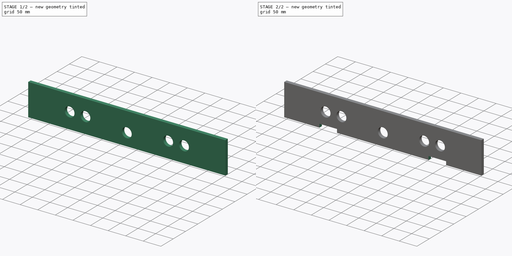
[diagram: build sequence overview — one tinted view per stage of 2, left to right]
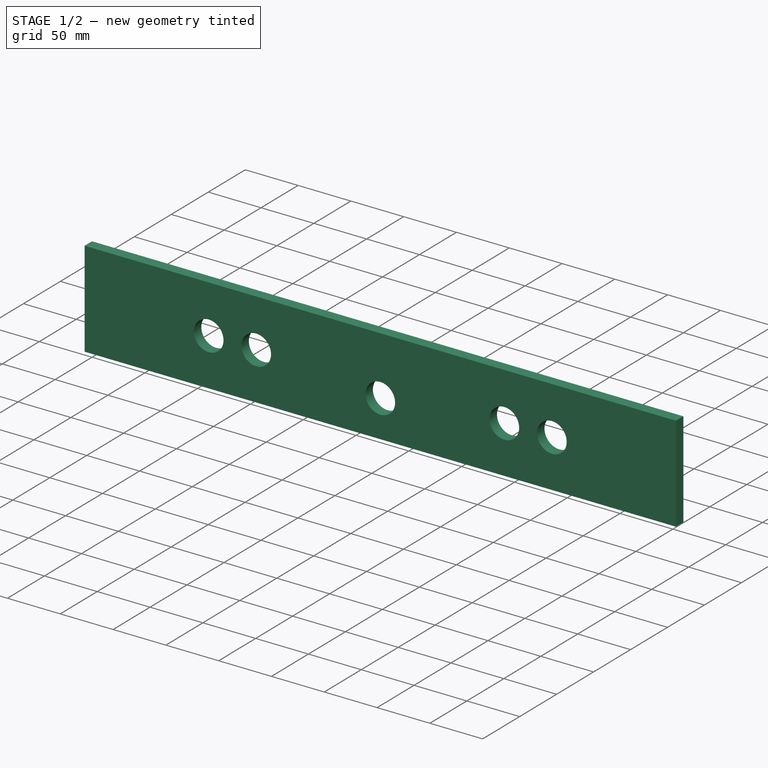
[diagram: stage 1 of 2 — iso view after this stage's code; geometry added in this stage tinted green]
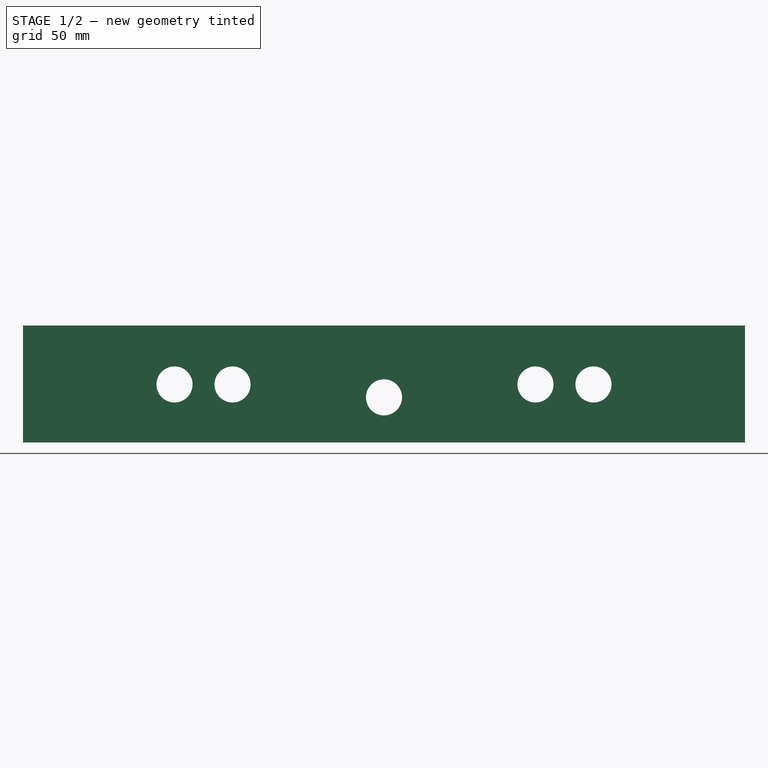
[diagram: stage 1 of 2 — front view after this stage's code; geometry added in this stage tinted green]
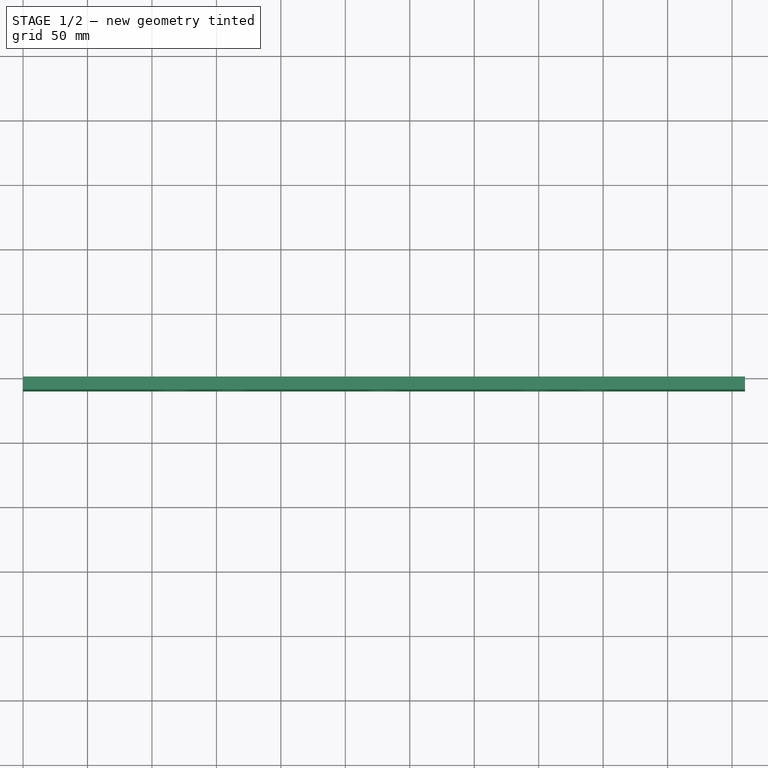
[diagram: stage 1 of 2 — top view after this stage's code; geometry added in this stage tinted green]
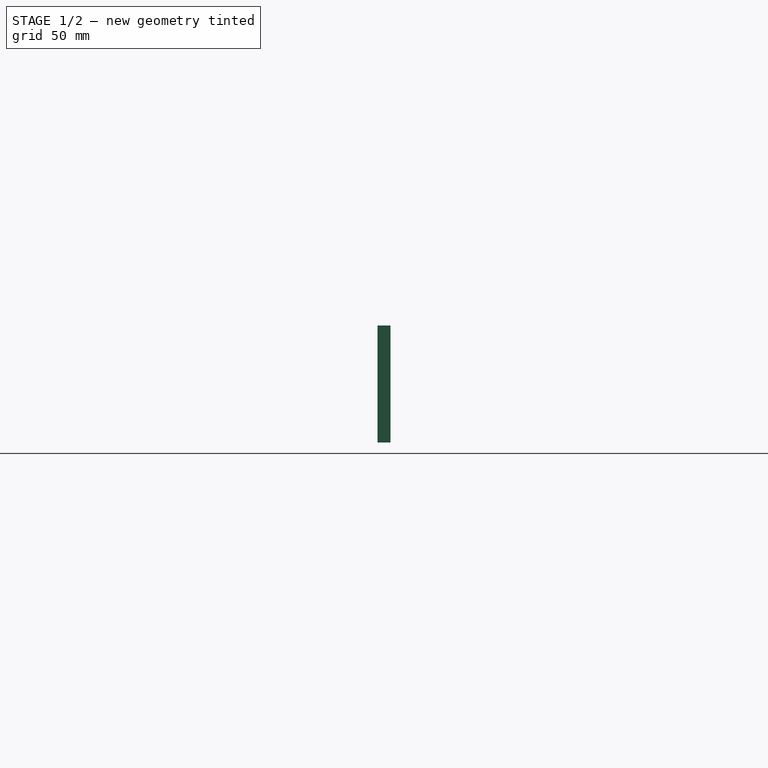
[diagram: stage 1 of 2 — right view after this stage's code; geometry added in this stage tinted green]
FCSTD DOCUMENT  (FreeCAD 0.16R)
Label: pannea_controle_avant
License: All rights reserved
LicenseURL: http://en.wikipedia.org/wiki/All_rights_reserved
objects: Sketcher::SketchObject×3, PartDesign::Pocket×2, PartDesign::Pad×1
note: 9 computed .brp shape members not serialized (recipe doc carries the construction recipe); baked Part::Feature solids carry a one-line shape summary decoded from their .brp

FEATURE [Sketcher::SketchObject] Sketch
  Placement = pos=(0,0,0) rot=(1,0,0;1.5708rad)
  sketch-geometry (4):
    g0: LineSegment StartX=0 StartY=0 StartZ=0 EndX=560 EndY=0 EndZ=0
    g1: LineSegment StartX=560 StartY=90.7 StartZ=0 EndX=0 EndY=90.7 EndZ=0
    g2: LineSegment StartX=560 StartY=90.7 StartZ=0 EndX=560 EndY=0 EndZ=0
    g3: LineSegment StartX=0 StartY=90.7 StartZ=0 EndX=0 EndY=0 EndZ=0
  constraints (11):
    c: Horizontal(g0)
    c: Horizontal(g1)
    c: Coincident(g0,g-1)
    c: Distance(g0) = 560
    c: DistanceY(g-1,g1) = 90.7
    c: Coincident(g2,g1)
    c: Coincident(g2,g0)
    c: Vertical(g2)
    c: Coincident(g3,g1)
    c: Coincident(g3,g-1)
    c: Vertical(g3)
FEATURE [PartDesign::Pad] Pad
  Length = 10
  Length2 = 100
  Placement = pos=(0,0,0) rot=(1,0,0;1.5708rad)
  Sketch = -> Sketch
  Type = 0
FEATURE [Sketcher::SketchObject] Sketch001
  Placement = pos=(0,-10,0) rot=(1,0,0;1.5708rad)
  Support = -> Pad [Face14]
  sketch-geometry (10):
    g0: Circle CenterX=117.5 CenterY=45 CenterZ=0 NormalX=0 NormalY=0 NormalZ=1 Radius=14
    g1: Circle CenterX=162.5 CenterY=45 CenterZ=0 NormalX=0 NormalY=0 NormalZ=1 Radius=14
    g2: Circle CenterX=397.5 CenterY=45 CenterZ=0 NormalX=0 NormalY=0 NormalZ=1 Radius=14
    g3: Circle CenterX=442.5 CenterY=45 CenterZ=0 NormalX=0 NormalY=0 NormalZ=1 Radius=14
    g4: LineSegment [constr] StartX=117.5 StartY=45 StartZ=0 EndX=162.5 EndY=45 EndZ=0
    g5: LineSegment [constr] StartX=397.5 StartY=45 StartZ=0 EndX=442.5 EndY=45 EndZ=0
    g6: Circle CenterX=280 CenterY=35 CenterZ=0 NormalX=0 NormalY=0 NormalZ=1 Radius=14
    g7: LineSegment [constr] StartX=162.5 StartY=45 StartZ=0 EndX=397.5 EndY=45 EndZ=0
    g8: GeomPoint [constr] X=280 Y=45 Z=0
    g9: LineSegment [constr] StartX=280 StartY=45 StartZ=0 EndX=280 EndY=35 EndZ=0
  constraints (24):
    c: Equal(g0,g1)
    c: Equal(g1,g2)
    c: Equal(g2,g3)
    c: DistanceX(g0,g1) = 45
    c: DistanceX(g2,g3) = 45
    c: Coincident(g4,g0)
    c: Coincident(g4,g1)
    c: Horizontal(g4)
    c: Coincident(g5,g2)
    c: Coincident(g5,g3)
    c: Horizontal(g5)
    c: Radius(g1) = 14
    c: Equal(g6,g2)
    c: DistanceX(g-1,g0) = 117.5
    c: DistanceX(g-1,g2) = 397.5
    c: Coincident(g7,g1)
    c: Coincident(g7,g2)
    c: Symmetric(g7,g7,g8)
    c: Coincident(g9,g8)
    c: Coincident(g9,g6)
    c: Vertical(g9)
    c: DistanceY(g9,g9) = 10
    c: DistanceY(g-1,g1) = 45
    c: Horizontal(g7)
FEATURE [PartDesign::Pocket] Pocket
  Length = 5
  Placement = pos=(0,0,0) rot=(1,0,0;1.5708rad)
  Sketch = -> Sketch001
  Type = 1
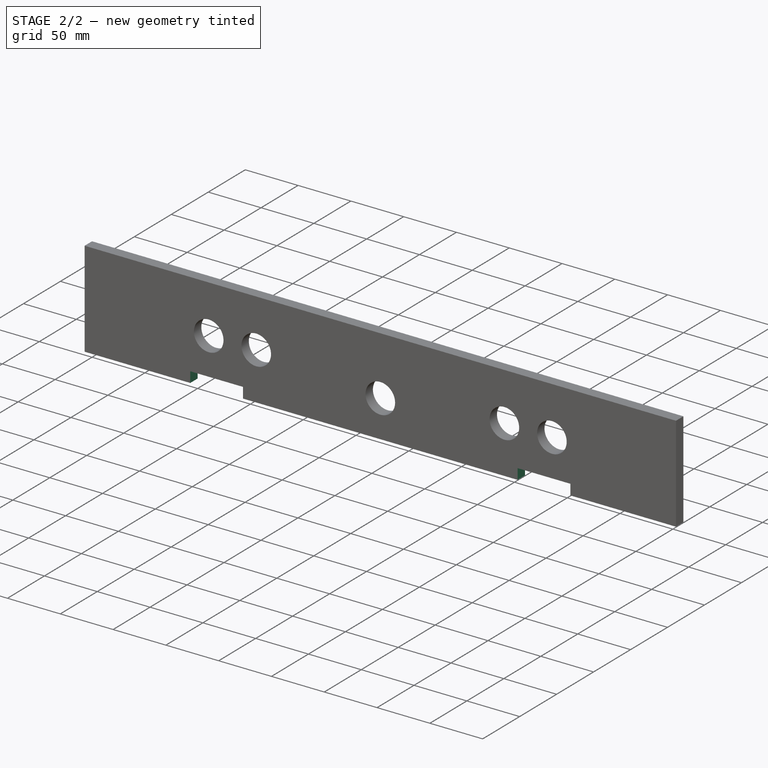
[diagram: stage 2 of 2 — iso view after this stage's code; geometry added in this stage tinted green]
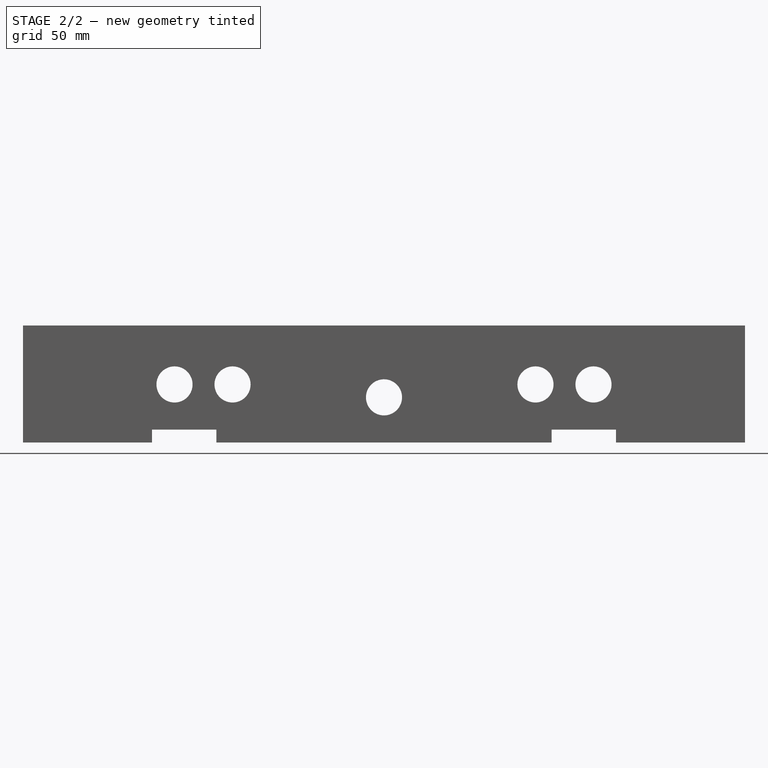
[diagram: stage 2 of 2 — front view after this stage's code; geometry added in this stage tinted green]
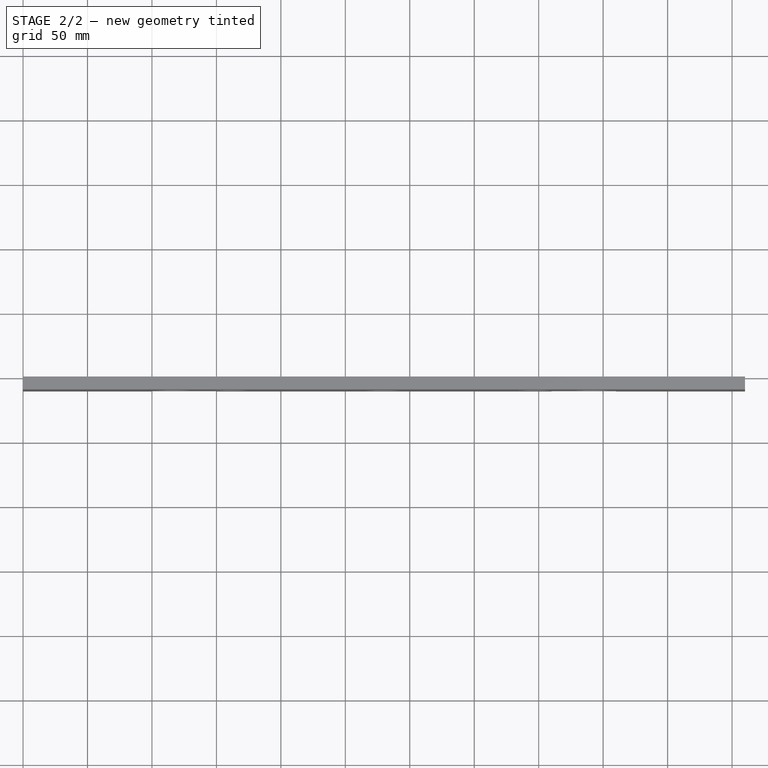
[diagram: stage 2 of 2 — top view after this stage's code; geometry added in this stage tinted green]
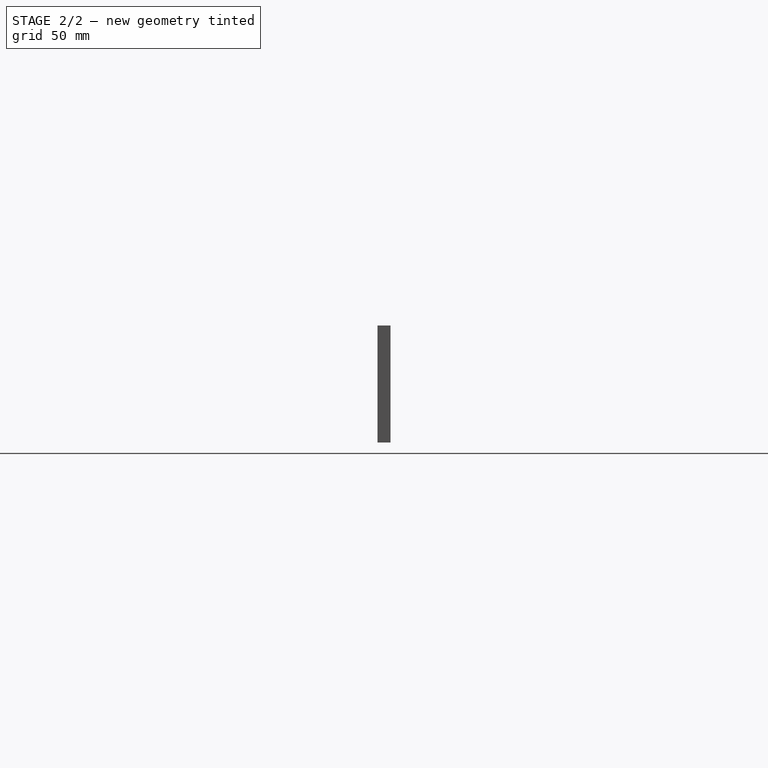
[diagram: stage 2 of 2 — right view after this stage's code; geometry added in this stage tinted green]
FEATURE [Sketcher::SketchObject] Sketch002
  Placement = pos=(0,-10,0) rot=(1,0,0;1.5708rad)
  Support = -> Pocket [Face5]
  sketch-geometry (8):
    g0: LineSegment StartX=150 StartY=0 StartZ=0 EndX=100 EndY=0 EndZ=0
    g1: LineSegment StartX=100 StartY=0 StartZ=0 EndX=100 EndY=10 EndZ=0
    g2: LineSegment StartX=100 StartY=10 StartZ=0 EndX=150 EndY=10 EndZ=0
    g3: LineSegment StartX=150 StartY=10 StartZ=0 EndX=150 EndY=0 EndZ=0
    g4: LineSegment StartX=410 StartY=0 StartZ=0 EndX=460 EndY=0 EndZ=0
    g5: LineSegment StartX=460 StartY=0 StartZ=0 EndX=460 EndY=10 EndZ=0
    g6: LineSegment StartX=460 StartY=10 StartZ=0 EndX=410 EndY=10 EndZ=0
    g7: LineSegment StartX=410 StartY=10 StartZ=0 EndX=410 EndY=0 EndZ=0
  constraints (26):
    c: Coincident(g0,g1)
    c: Coincident(g1,g2)
    c: Coincident(g2,g3)
    c: Coincident(g3,g0)
    c: Horizontal(g0)
    c: Horizontal(g2)
    c: Vertical(g1)
    c: Vertical(g3)
    c: Coincident(g4,g5)
    c: Coincident(g5,g6)
    c: Coincident(g6,g7)
    c: Coincident(g7,g4)
    c: Horizontal(g4)
    c: Horizontal(g6)
    c: Vertical(g5)
    c: Vertical(g7)
    c: Equal(g3,g1)
    c: Equal(g1,g7)
    c: Equal(g7,g5)
    c: Distance(g5) = 10
    c: Equal(g2,g6)
    c: Distance(g6) = 50
    c: PointOnObject(g0,g-1)
    c: PointOnObject(g4,g-1)
    c: DistanceX(g-1,g0) = 100
    c: DistanceX(g0,g4) = 260
FEATURE [PartDesign::Pocket] Pocket001
  Length = 5
  Placement = pos=(0,0,0) rot=(1,0,0;1.5708rad)
  Sketch = -> Sketch002
  Type = 1
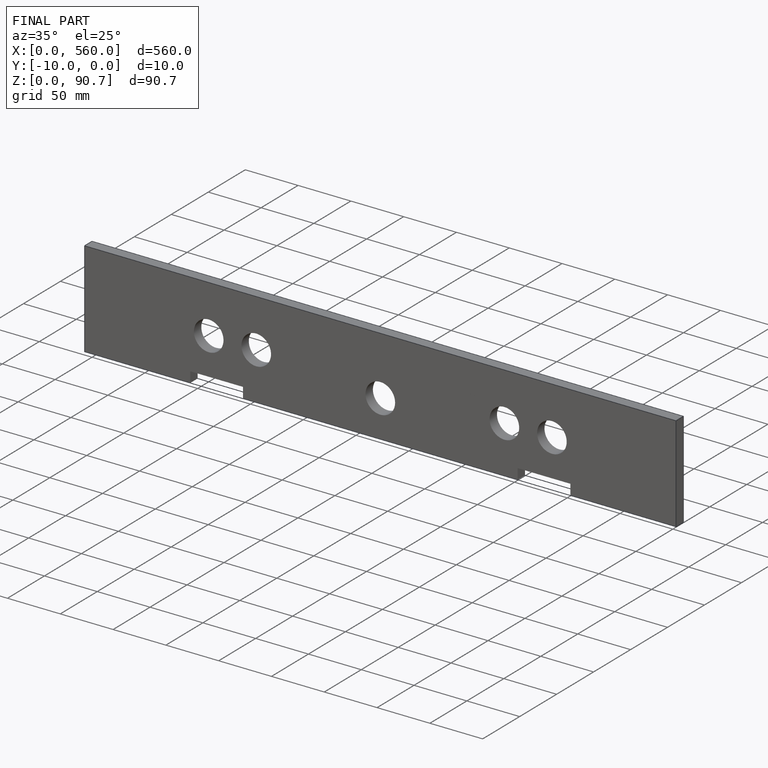
[diagram: finished part — iso view with bounding-box wireframe]
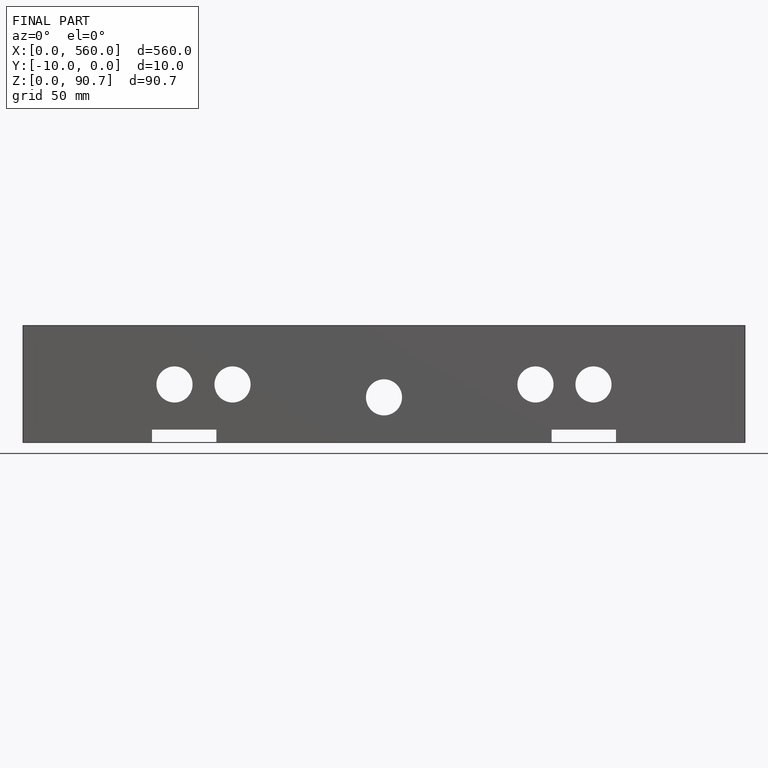
[diagram: finished part — front view with bounding-box wireframe]
